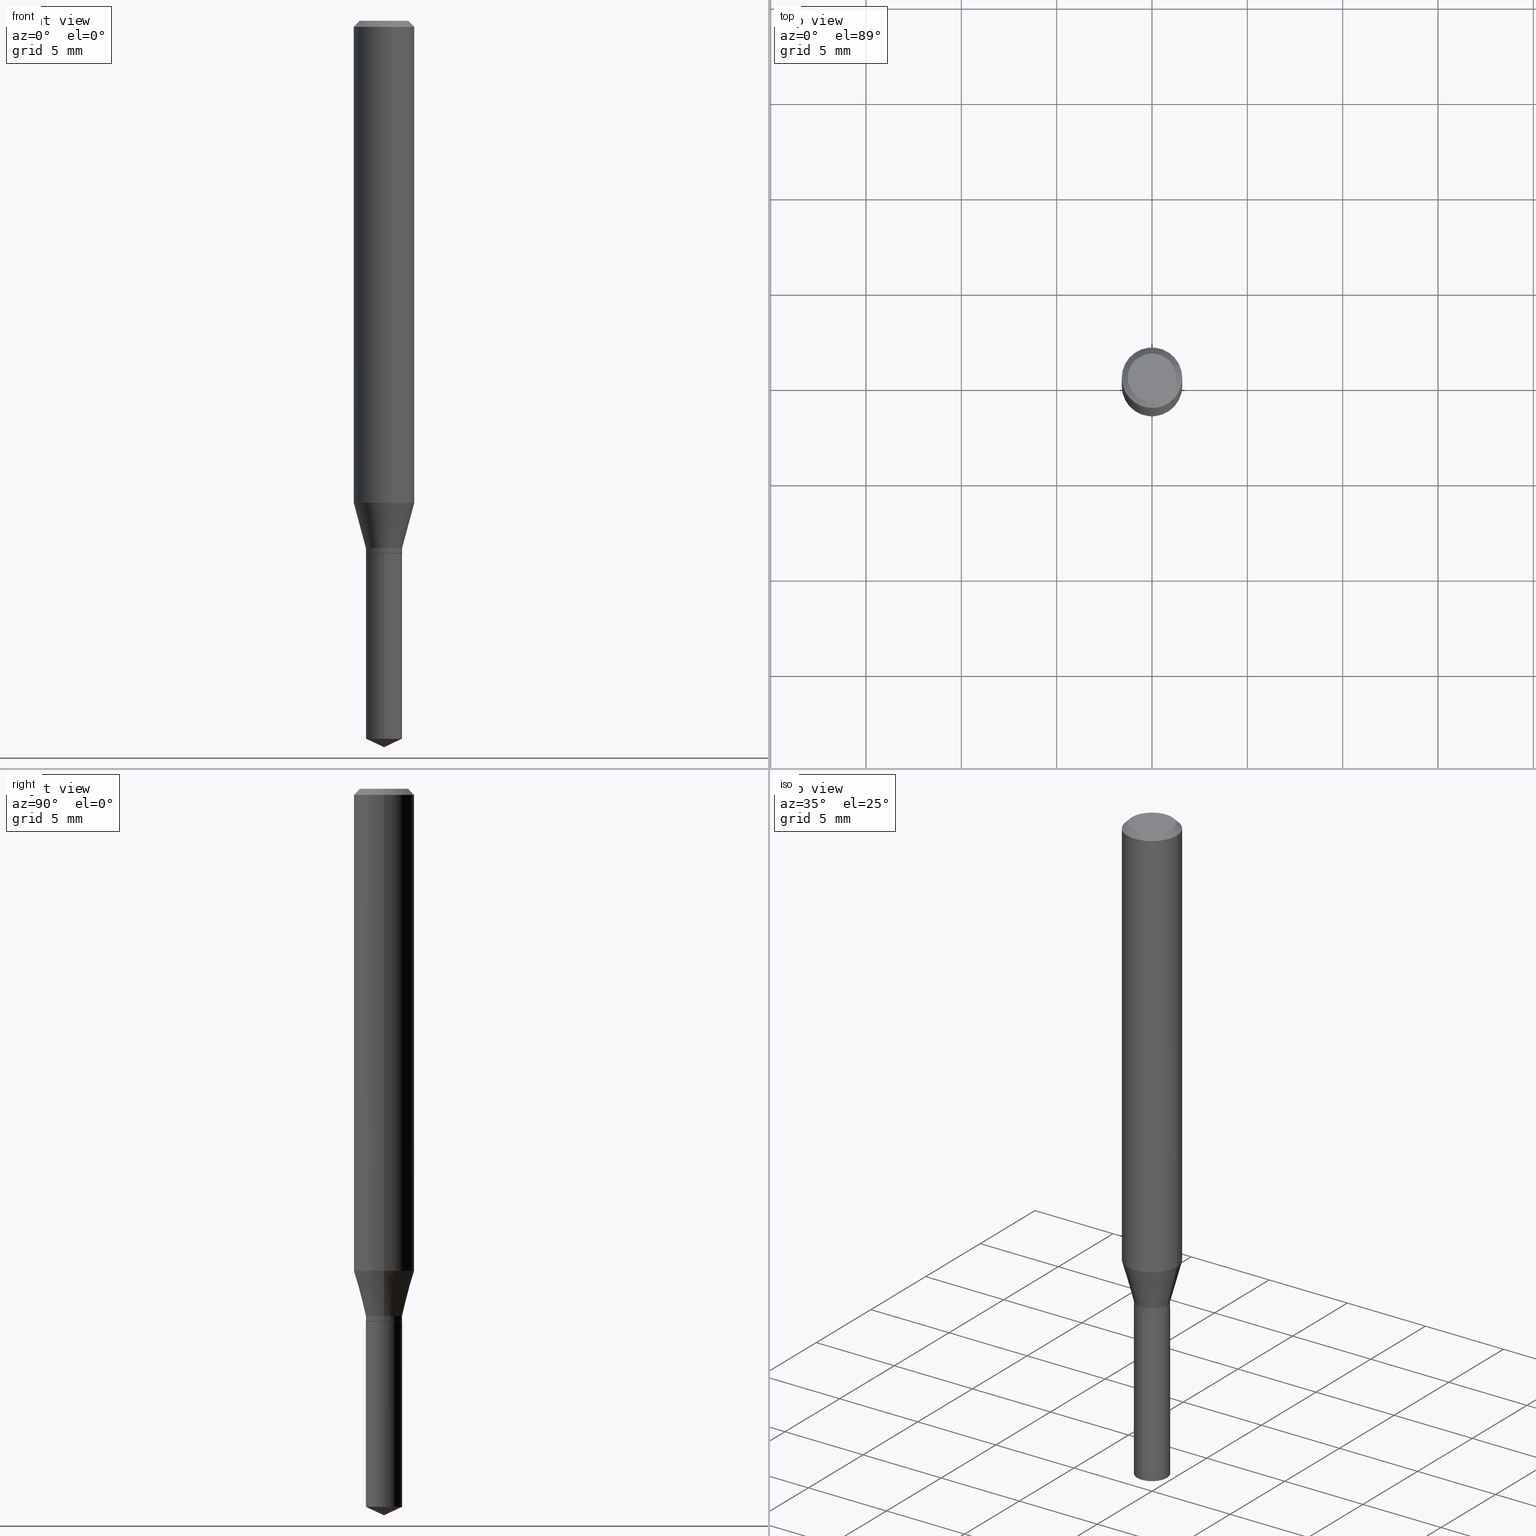
[diagram: canonical four-view strip — front | top / right | iso, engineering-drawing reading convention]
A machine part, canonical four-view strip (front | top / right | iso — engineering-drawing reading convention). The complete STEP part file that produces these views, byte-faithful:
ISO-10303-21;
HEADER;
FILE_DESCRIPTION (( 'STEP AP203' ),
    '1' );
FILE_NAME ('07352.STEP',
    '2024-04-23T20:39:58',
    ( '' ),
    ( '' ),
    'SwSTEP 2.0',
    'SolidWorks 2023',
    '' );
FILE_SCHEMA (( 'CONFIG_CONTROL_DESIGN' ));
ENDSEC;

DATA;
#1 = ORIENTED_EDGE ( 'NONE', *, *, #389, .F. ) ;
#2 = VECTOR ( 'NONE', #466, 39.37007874015748143 ) ;
#3 = FACE_OUTER_BOUND ( 'NONE', #422, .T. ) ;
#4 = ORIENTED_EDGE ( 'NONE', *, *, #47, .F. ) ;
#5 = EDGE_CURVE ( 'NONE', #321, #427, #157, .T. ) ;
#6 = ORIENTED_EDGE ( 'NONE', *, *, #439, .T. ) ;
#7 = VERTEX_POINT ( 'NONE', #357 ) ;
#8 = APPROVAL_PERSON_ORGANIZATION ( #67, #313, #29 ) ;
#9 = ORIENTED_EDGE ( 'NONE', *, *, #163, .T. ) ;
#10 = FACE_OUTER_BOUND ( 'NONE', #50, .T. ) ;
#11 = CARTESIAN_POINT ( 'NONE',  ( 0.03740000000000000269, -4.062687685877884033E-15, -1.088800000000000212 ) ) ;
#12 = DIRECTION ( 'NONE',  ( -6.982962677686265922E-15, -1.000000000000000000, 3.652203200085913145E-15 ) ) ;
#13 = CARTESIAN_POINT ( 'NONE',  ( -2.611628041454394310E-16, -0.03740000000000384683, -1.099999999999999867 ) ) ;
#14 = CARTESIAN_POINT ( 'NONE',  ( 0.000000000000000000, 0.000000000000000000, 0.000000000000000000 ) ) ;
#15 = AXIS2_PLACEMENT_3D ( 'NONE', #473, #31, #298 ) ;
#16 = AXIS2_PLACEMENT_3D ( 'NONE', #14, #353, #118 ) ;
#17 = DIRECTION ( 'NONE',  ( -6.328713451373374901E-15, -0.9063077870366492705, 0.4226182617407009956 ) ) ;
#18 = ADVANCED_FACE ( 'NONE', ( #256 ), #304, .T. ) ;
#19 = VERTEX_POINT ( 'NONE', #21 ) ;
#20 = EDGE_LOOP ( 'NONE', ( #197, #281, #452, #318 ) ) ;
#21 = CARTESIAN_POINT ( 'NONE',  ( 3.668099535622682715E-29, -5.237370474839449507E-15, -1.500000000000000222 ) ) ;
#22 = DIRECTION ( 'NONE',  ( -2.445468806185136597E-29, 3.491481338843145583E-15, 1.000000000000000000 ) ) ;
#23 = VECTOR ( 'NONE', #59, 39.37007874015747433 ) ;
#24 = ADVANCED_FACE ( 'NONE', ( #10 ), #339, .T. ) ;
#25 = LINE ( 'NONE', #398, #23 ) ;
#26 = AXIS2_PLACEMENT_3D ( 'NONE', #371, #95, #400 ) ;
#27 = CIRCLE ( 'NONE', #471, 0.03740000000000000269 ) ;
#28 = LOCAL_TIME ( 16, 39, 58.00000000000000000, #375 ) ;
#29 = APPROVAL_ROLE ( '' ) ;
#30 = DIRECTION ( 'NONE',  ( -2.445468806185136597E-29, 3.491481338843145583E-15, 1.000000000000000000 ) ) ;
#31 = DIRECTION ( 'NONE',  ( 2.445468806185136597E-29, -3.491481338843145583E-15, -1.000000000000000000 ) ) ;
#32 = CALENDAR_DATE ( 2024, 23, 4 ) ;
#33 = DIRECTION ( 'NONE',  ( 1.000000000000000000, -6.982962677686261189E-15, 0.000000000000000000 ) ) ;
#34 = ORIENTED_EDGE ( 'NONE', *, *, #246, .T. ) ;
#35 = EDGE_CURVE ( 'NONE', #427, #44, #368, .T. ) ;
#36 = EDGE_CURVE ( 'NONE', #149, #122, #251, .T. ) ;
#37 = ORIENTED_EDGE ( 'NONE', *, *, #5, .F. ) ;
#38 = LINE ( 'NONE', #86, #2 ) ;
#39 = VERTEX_POINT ( 'NONE', #167 ) ;
#40 = ADVANCED_FACE ( 'NONE', ( #331 ), #477, .F. ) ;
#41 = DIRECTION ( 'NONE',  ( -2.445468806185136597E-29, 3.491481338843145583E-15, 1.000000000000000000 ) ) ;
#42 = EDGE_LOOP ( 'NONE', ( #390, #73, #384, #1 ) ) ;
#43 = PRODUCT_DEFINITION_SHAPE ( 'NONE', 'NONE',  #241 ) ;
#44 = VERTEX_POINT ( 'NONE', #359 ) ;
#45 = VECTOR ( 'NONE', #188, 39.37007874015748143 ) ;
#46 = AXIS2_PLACEMENT_3D ( 'NONE', #385, #274, #416 ) ;
#47 = EDGE_CURVE ( 'NONE', #440, #191, #363, .T. ) ;
#48 = CARTESIAN_POINT ( 'NONE',  ( 2.690015686803650369E-29, -3.840629472727460101E-15, -1.100000000000000089 ) ) ;
#49 = DIRECTION ( 'NONE',  ( 2.438088387897960049E-29, -3.491481338843145188E-15, -1.000000000000000000 ) ) ;
#50 = EDGE_LOOP ( 'NONE', ( #4, #279, #153, #218 ) ) ;
#51 = DIRECTION ( 'NONE',  ( 0.2588190451025213501, 1.565188264969621968E-15, 0.9659258262890682012 ) ) ;
#52 = DIRECTION ( 'NONE',  ( -6.982962677686265922E-15, -1.000000000000000000, 3.652203200085913145E-15 ) ) ;
#53 = EDGE_LOOP ( 'NONE', ( #367, #352, #284 ) ) ;
#54 = CC_DESIGN_PERSON_AND_ORGANIZATION_ASSIGNMENT ( #340, #233, ( #420 ) ) ;
#55 = DIRECTION ( 'NONE',  ( -6.982962677686266711E-15, -1.000000000000000000, 3.520397390770453475E-15 ) ) ;
#56 = AXIS2_PLACEMENT_3D ( 'NONE', #48, #387, #12 ) ;
#57 = CARTESIAN_POINT ( 'NONE',  ( 2.433548428965882427E-29, -3.474462199401361914E-15, -0.9951255247300211382 ) ) ;
#58 = CARTESIAN_POINT ( 'NONE',  ( 2.690015686803650369E-29, -3.840629472727460101E-15, -1.100000000000000089 ) ) ;
#59 = DIRECTION ( 'NONE',  ( -0.2588190451025213501, 5.211531920934551042E-15, 0.9659258262890682012 ) ) ;
#60 = CARTESIAN_POINT ( 'NONE',  ( 0.04999999999999999584, -4.077247707424184212E-16, -1.592040838888913461E-18 ) ) ;
#61 = CARTESIAN_POINT ( 'NONE',  ( -9.260740279983036507E-28, 1.322265303911854087E-13, 37.87007874015748143 ) ) ;
#62 = DATE_TIME_ROLE ( 'classification_date' ) ;
#63 = CARTESIAN_POINT ( 'NONE',  ( -2.611628041454394310E-16, -0.03740000000000384683, -1.099999999999999867 ) ) ;
#64 = ADVANCED_FACE ( 'NONE', ( #291 ), #180, .T. ) ;
#65 = APPROVAL_STATUS ( 'not_yet_approved' ) ;
#66 = CARTESIAN_POINT ( 'NONE',  ( 0.03740000000000000269, -2.611628041454664002E-16, 1.823690114147680082E-30 ) ) ;
#67 = PERSON_AND_ORGANIZATION ( #135, #92 ) ;
#68 = DIRECTION ( 'NONE',  ( -2.445468806185136877E-29, 3.491481338843145188E-15, 1.000000000000000000 ) ) ;
#69 = AXIS2_PLACEMENT_3D ( 'NONE', #155, #316, #460 ) ;
#70 = CC_DESIGN_APPROVAL ( #313, ( #420 ) ) ;
#71 = PERSON_AND_ORGANIZATION ( #135, #92 ) ;
#72 = ORIENTED_EDGE ( 'NONE', *, *, #411, .T. ) ;
#73 = ORIENTED_EDGE ( 'NONE', *, *, #436, .T. ) ;
#74 = LINE ( 'NONE', #182, #445 ) ;
#75 = CC_DESIGN_DATE_AND_TIME_ASSIGNMENT ( #271, #405, ( #241 ) ) ;
#76 =( CONVERSION_BASED_UNIT ( 'INCH', #348 ) LENGTH_UNIT ( ) NAMED_UNIT ( #211 ) );
#77 = EDGE_LOOP ( 'NONE', ( #72, #324, #219, #297 ) ) ;
#78 = AXIS2_PLACEMENT_3D ( 'NONE', #482, #96, #148 ) ;
#79 = ORIENTED_EDGE ( 'NONE', *, *, #399, .F. ) ;
#80 = ORIENTED_EDGE ( 'NONE', *, *, #246, .F. ) ;
#81 = ADVANCED_FACE ( 'NONE', ( #402 ), #459, .T. ) ;
#82 = LINE ( 'NONE', #209, #365 ) ;
#83 = ORIENTED_EDGE ( 'NONE', *, *, #312, .T. ) ;
#84 = EDGE_LOOP ( 'NONE', ( #383, #455, #397, #193 ) ) ;
#85 = DIRECTION ( 'NONE',  ( -2.438088387897960049E-29, 3.491481338843145188E-15, 1.000000000000000000 ) ) ;
#86 = CARTESIAN_POINT ( 'NONE',  ( 0.06250000000000000000, -4.724246415962602840E-16, -0.01250000000000008223 ) ) ;
#87 = AXIS2_PLACEMENT_3D ( 'NONE', #345, #273, #344 ) ;
#88 = AXIS2_PLACEMENT_3D ( 'NONE', #58, #133, #468 ) ;
#89 = LINE ( 'NONE', #294, #249 ) ;
#90 = ADVANCED_FACE ( 'NONE', ( #302 ), #489, .T. ) ;
#91 = ORIENTED_EDGE ( 'NONE', *, *, #47, .T. ) ;
#92 = ORGANIZATION ( 'UNSPECIFIED', 'UNSPECIFIED', '' ) ;
#93 = ORIENTED_EDGE ( 'NONE', *, *, #480, .T. ) ;
#94 = DIRECTION ( 'NONE',  ( -2.445399690415121530E-29, 3.491580316559632610E-15, 1.000000000000000000 ) ) ;
#95 = DIRECTION ( 'NONE',  ( -2.445468806185136597E-29, 3.491481338843145583E-15, 1.000000000000000000 ) ) ;
#96 = DIRECTION ( 'NONE',  ( 0.000000000000000000, 0.000000000000000000, 1.000000000000000000 ) ) ;
#97 = EDGE_CURVE ( 'NONE', #146, #160, #311, .T. ) ;
#98 = CIRCLE ( 'NONE', #341, 0.03740000000000000269 ) ;
#99 = ADVANCED_FACE ( 'NONE', ( #152 ), #454, .F. ) ;
#100 = CALENDAR_DATE ( 2024, 23, 4 ) ;
#101 =( NAMED_UNIT ( * ) SI_UNIT ( $, .STERADIAN. ) SOLID_ANGLE_UNIT ( ) );
#102 = PERSON_AND_ORGANIZATION_ROLE ( 'classification_officer' ) ;
#103 = VECTOR ( 'NONE', #128, 39.37007874015748143 ) ;
#104 = AXIS2_PLACEMENT_3D ( 'NONE', #196, #263, #270 ) ;
#105 = DATE_AND_TIME ( #32, #28 ) ;
#106 = EDGE_CURVE ( 'NONE', #292, #131, #415, .T. ) ;
#107 = CARTESIAN_POINT ( 'NONE',  ( 2.690015686803650369E-29, -3.840629472727460101E-15, -1.100000000000000089 ) ) ;
#108 = EDGE_LOOP ( 'NONE', ( #6, #210, #114, #162 ) ) ;
#109 = VERTEX_POINT ( 'NONE', #185 ) ;
#110 =( NAMED_UNIT ( * ) PLANE_ANGLE_UNIT ( ) SI_UNIT ( $, .RADIAN. ) );
#111 = EDGE_LOOP ( 'NONE', ( #79, #119, #464, #257 ) ) ;
#112 = FACE_OUTER_BOUND ( 'NONE', #332, .T. ) ;
#113 = CIRCLE ( 'NONE', #470, 0.06250000000000000000 ) ;
#114 = ORIENTED_EDGE ( 'NONE', *, *, #411, .F. ) ;
#115 = CIRCLE ( 'NONE', #214, 0.03690000000000000224 ) ;
#116 = CARTESIAN_POINT ( 'NONE',  ( -2.611628041454301126E-16, -0.03740000000000517216, -1.482560093585003180 ) ) ;
#117 = DIRECTION ( 'NONE',  ( -2.445468806185136877E-29, 3.491481338843145188E-15, 1.000000000000000000 ) ) ;
#118 = DIRECTION ( 'NONE',  ( 1.000000000000000000, -6.982962677686267499E-15, 4.876176775795936353E-29 ) ) ;
#119 = ORIENTED_EDGE ( 'NONE', *, *, #5, .T. ) ;
#120 = EDGE_CURVE ( 'NONE', #19, #292, #451, .T. ) ;
#121 = DIRECTION ( 'NONE',  ( 0.7071067811865232589, -2.468850131082003836E-15, 0.7071067811865715536 ) ) ;
#122 = VERTEX_POINT ( 'NONE', #63 ) ;
#123 = DIRECTION ( 'NONE',  ( -2.445399690415121810E-29, 3.491580316559632610E-15, 1.000000000000000000 ) ) ;
#124 = AXIS2_PLACEMENT_3D ( 'NONE', #388, #41, #139 ) ;
#125 = EDGE_CURVE ( 'NONE', #44, #198, #113, .T. ) ;
#126 = ADVANCED_FACE ( 'NONE', ( #306 ), #490, .T. ) ;
#127 = ORIENTED_EDGE ( 'NONE', *, *, #443, .T. ) ;
#128 = DIRECTION ( 'NONE',  ( -2.445468806185136877E-29, 3.491481338843145188E-15, 1.000000000000000000 ) ) ;
#129 = VERTEX_POINT ( 'NONE', #392 ) ;
#130 = DIRECTION ( 'NONE',  ( 1.000000000000000000, -6.982962677686264344E-15, 0.000000000000000000 ) ) ;
#131 = VERTEX_POINT ( 'NONE', #205 ) ;
#132 = EDGE_CURVE ( 'NONE', #146, #39, #221, .T. ) ;
#133 = DIRECTION ( 'NONE',  ( -2.445468806185136597E-29, 3.491481338843145583E-15, 1.000000000000000000 ) ) ;
#134 = AXIS2_PLACEMENT_3D ( 'NONE', #309, #450, #33 ) ;
#135 = PERSON ( 'UNSPECIFIED', 'UNSPECIFIED', 'UNSPECIFIED', ('UNSPECIFIED'), ('UNSPECIFIED'), ('UNSPECIFIED') ) ;
#136 = MANIFOLD_SOLID_BREP ( 'Body-Move/Copy2[1]', #248 ) ;
#137 = DATE_AND_TIME ( #410, #143 ) ;
#138 = APPLICATION_PROTOCOL_DEFINITION ( 'international standard', 'config_control_design', 1994, #479 ) ;
#139 = DIRECTION ( 'NONE',  ( 1.000000000000000000, -6.982962677686266711E-15, 4.876176775795935793E-29 ) ) ;
#140 = AXIS2_PLACEMENT_3D ( 'NONE', #61, #222, #374 ) ;
#141 = DIRECTION ( 'NONE',  ( 1.000000000000000000, -6.982962677686266711E-15, 0.000000000000000000 ) ) ;
#142 = LINE ( 'NONE', #441, #373 ) ;
#143 = LOCAL_TIME ( 16, 39, 58.00000000000000000, #226 ) ;
#144 = FACE_OUTER_BOUND ( 'NONE', #42, .T. ) ;
#145 = CARTESIAN_POINT ( 'NONE',  ( 0.000000000000000000, 0.000000000000000000, 0.000000000000000000 ) ) ;
#146 = VERTEX_POINT ( 'NONE', #457 ) ;
#147 = ADVANCED_FACE ( 'NONE', ( #3 ), #282, .F. ) ;
#148 = DIRECTION ( 'NONE',  ( 1.000000000000000000, 0.000000000000000000, 0.000000000000000000 ) ) ;
#149 = VERTEX_POINT ( 'NONE', #116 ) ;
#150 = AXIS2_PLACEMENT_3D ( 'NONE', #322, #159, #293 ) ;
#151 = CIRCLE ( 'NONE', #432, 0.03740000000000000269 ) ;
#152 = FACE_OUTER_BOUND ( 'NONE', #354, .T. ) ;
#153 = ORIENTED_EDGE ( 'NONE', *, *, #125, .T. ) ;
#154 = EDGE_CURVE ( 'NONE', #122, #131, #437, .T. ) ;
#155 = CARTESIAN_POINT ( 'NONE',  ( 2.690015686803650369E-29, -3.840629472727460101E-15, -1.100000000000000089 ) ) ;
#156 = ADVANCED_FACE ( 'NONE', ( #195 ), #372, .T. ) ;
#157 = CIRCLE ( 'NONE', #326, 0.06250000000000012490 ) ;
#158 = AXIS2_PLACEMENT_3D ( 'NONE', #366, #362, #55 ) ;
#159 = DIRECTION ( 'NONE',  ( -2.445468806185136597E-29, 3.491481338843145583E-15, 1.000000000000000000 ) ) ;
#160 = VERTEX_POINT ( 'NONE', #11 ) ;
#161 = DIRECTION ( 'NONE',  ( -2.445468806185136597E-29, 3.491481338843145583E-15, 1.000000000000000000 ) ) ;
#162 = ORIENTED_EDGE ( 'NONE', *, *, #237, .F. ) ;
#163 = EDGE_CURVE ( 'NONE', #19, #149, #434, .T. ) ;
#164 = FACE_OUTER_BOUND ( 'NONE', #53, .T. ) ;
#165 = CARTESIAN_POINT ( 'NONE',  ( 3.893286209682126177E-47, -5.558580879666067980E-33, -1.592040838891559689E-18 ) ) ;
#166 = CONICAL_SURFACE ( 'NONE', #46, 0.06250000000000000000, 0.7853981633974452814 ) ;
#167 = CARTESIAN_POINT ( 'NONE',  ( -0.03740000000000000269, -3.554461323720950725E-15, -1.099499999999999922 ) ) ;
#168 = VECTOR ( 'NONE', #17, 39.37007874015748143 ) ;
#169 = VECTOR ( 'NONE', #117, 39.37007874015748143 ) ;
#170 = ORIENTED_EDGE ( 'NONE', *, *, #217, .F. ) ;
#171 = DIRECTION ( 'NONE',  ( 1.000000000000000000, -6.982962677686266711E-15, 0.000000000000000000 ) ) ;
#172 = DIRECTION ( 'NONE',  ( 1.000000000000000000, -6.982962677686261189E-15, 0.000000000000000000 ) ) ;
#173 = APPLICATION_PROTOCOL_DEFINITION ( 'international standard', 'config_control_design', 1994, #295 ) ;
#174 = PERSON_AND_ORGANIZATION_ROLE ( 'design_owner' ) ;
#175 = CARTESIAN_POINT ( 'NONE',  ( 3.668252923656895710E-29, -5.237152723863177100E-15, -1.500000000000000222 ) ) ;
#176 = DIRECTION ( 'NONE',  ( -2.445399690415121530E-29, 3.491580316559632610E-15, 1.000000000000000000 ) ) ;
#177 = UNCERTAINTY_MEASURE_WITH_UNIT (LENGTH_MEASURE( 1.000000000000000082E-05 ), #76, 'distance_accuracy_value', 'NONE');
#178 = COORDINATED_UNIVERSAL_TIME_OFFSET ( 5, 0, .BEHIND. ) ;
#179 = CARTESIAN_POINT ( 'NONE',  ( 0.000000000000000000, 0.000000000000000000, 0.000000000000000000 ) ) ;
#180 = CONICAL_SURFACE ( 'NONE', #265, 0.03740000000000000269, 0.2617993877991500740 ) ;
#181 = CIRCLE ( 'NONE', #255, 0.06250000000000012490 ) ;
#182 = CARTESIAN_POINT ( 'NONE',  ( -0.03690000000000000224, -3.578439203231982821E-15, -1.100000000000000089 ) ) ;
#183 = DIRECTION ( 'NONE',  ( 1.000000000000000000, -6.982962677686261977E-15, 0.000000000000000000 ) ) ;
#184 = MECHANICAL_CONTEXT ( 'NONE', #479, 'mechanical' ) ;
#185 = CARTESIAN_POINT ( 'NONE',  ( -0.03740000000000000269, -3.554461323720950725E-15, -1.088800000000000212 ) ) ;
#186 = APPROVAL_DATE_TIME ( #105, #423 ) ;
#187 = ORIENTED_EDGE ( 'NONE', *, *, #253, .T. ) ;
#188 = DIRECTION ( 'NONE',  ( -2.445399690415121810E-29, 3.491580316559632610E-15, 1.000000000000000000 ) ) ;
#189 = EDGE_LOOP ( 'NONE', ( #413, #187, #358, #349 ) ) ;
#190 =( LENGTH_UNIT ( ) NAMED_UNIT ( * ) SI_UNIT ( $, .METRE. ) );
#191 = VERTEX_POINT ( 'NONE', #330 ) ;
#192 = CARTESIAN_POINT ( 'NONE',  ( 2.657429831743136776E-16, 0.03739999999999481933, -1.482560093585003180 ) ) ;
#193 = ORIENTED_EDGE ( 'NONE', *, *, #480, .F. ) ;
#194 = FACE_OUTER_BOUND ( 'NONE', #77, .T. ) ;
#195 = FACE_OUTER_BOUND ( 'NONE', #189, .T. ) ;
#196 = CARTESIAN_POINT ( 'NONE',  ( 3.893286209682126177E-47, -5.558580879666067980E-33, -1.592040838891559689E-18 ) ) ;
#197 = ORIENTED_EDGE ( 'NONE', *, *, #261, .T. ) ;
#198 = VERTEX_POINT ( 'NONE', #259 ) ;
#199 = AXIS2_PLACEMENT_3D ( 'NONE', #165, #325, #469 ) ;
#200 = DIRECTION ( 'NONE',  ( -2.445468806185136597E-29, 3.491481338843145583E-15, 1.000000000000000000 ) ) ;
#201 = SECURITY_CLASSIFICATION ( '', '', #442 ) ;
#202 = CARTESIAN_POINT ( 'NONE',  ( 2.688792952400557567E-29, -3.838883732058038598E-15, -1.099499999999999922 ) ) ;
#203 = LINE ( 'NONE', #287, #333 ) ;
#204 = ADVANCED_FACE ( 'NONE', ( #112 ), #166, .T. ) ;
#205 = CARTESIAN_POINT ( 'NONE',  ( 2.657429831743138255E-16, 0.03739999999999616548, -1.100000000000000089 ) ) ;
#206 = DIRECTION ( 'NONE',  ( -1.000000000000000000, 6.982962677686265922E-15, -4.876176775795935793E-29 ) ) ;
#207 = ORIENTED_EDGE ( 'NONE', *, *, #36, .T. ) ;
#208 = ORIENTED_EDGE ( 'NONE', *, *, #97, .F. ) ;
#209 = CARTESIAN_POINT ( 'NONE',  ( -0.06250000000000005551, 4.440892098500630106E-16, -3.074334431409318916E-30 ) ) ;
#210 = ORIENTED_EDGE ( 'NONE', *, *, #262, .T. ) ;
#211 = DIMENSIONAL_EXPONENTS ( 1.000000000000000000, 0.000000000000000000, 0.000000000000000000, 0.000000000000000000, 0.000000000000000000, 0.000000000000000000, 0.000000000000000000 ) ;
#212 = PRODUCT ( '07352', '07352', '', ( #184 ) ) ;
#213 = AXIS2_PLACEMENT_3D ( 'NONE', #107, #308, #231 ) ;
#214 = AXIS2_PLACEMENT_3D ( 'NONE', #225, #403, #172 ) ;
#215 = CARTESIAN_POINT ( 'NONE',  ( 3.668099535622682155E-29, -5.237370474839448718E-15, -1.500000000000000222 ) ) ;
#216 = CIRCLE ( 'NONE', #104, 0.04999999999999999584 ) ;
#217 = EDGE_CURVE ( 'NONE', #440, #44, #38, .T. ) ;
#218 = ORIENTED_EDGE ( 'NONE', *, *, #444, .F. ) ;
#219 = ORIENTED_EDGE ( 'NONE', *, *, #125, .F. ) ;
#220 = CARTESIAN_POINT ( 'NONE',  ( 3.056836007731440977E-31, -4.364351673553961068E-17, -0.01250000000000008223 ) ) ;
#221 = CIRCLE ( 'NONE', #254, 0.03740000000000000269 ) ;
#222 = DIRECTION ( 'NONE',  ( -2.445399690415121530E-29, 3.491580316559632610E-15, 1.000000000000000000 ) ) ;
#223 = CIRCLE ( 'NONE', #88, 0.03690000000000000224 ) ;
#224 = APPROVAL_STATUS ( 'not_yet_approved' ) ;
#225 = CARTESIAN_POINT ( 'NONE',  ( 2.690015686803650369E-29, -3.840629472727460101E-15, -1.100000000000000089 ) ) ;
#226 = COORDINATED_UNIVERSAL_TIME_OFFSET ( 5, 0, .BEHIND. ) ;
#227 = PERSON_AND_ORGANIZATION ( #135, #92 ) ;
#228 = ADVANCED_FACE ( 'NONE', ( #194 ), #247, .T. ) ;
#229 = DIRECTION ( 'NONE',  ( -2.445468806185136597E-29, 3.491481338843145583E-15, 1.000000000000000000 ) ) ;
#230 = LOCAL_TIME ( 16, 39, 58.00000000000000000, #448 ) ;
#231 = DIRECTION ( 'NONE',  ( 6.982962677686265922E-15, 1.000000000000000000, -3.491580316559632610E-15 ) ) ;
#232 = CARTESIAN_POINT ( 'NONE',  ( 2.662626436174376772E-29, -3.801524881732417633E-15, -1.088800000000000212 ) ) ;
#233 = PERSON_AND_ORGANIZATION_ROLE ( 'creator' ) ;
#234 = ORIENTED_EDGE ( 'NONE', *, *, #430, .F. ) ;
#235 = APPROVAL_STATUS ( 'not_yet_approved' ) ;
#236 = ORIENTED_EDGE ( 'NONE', *, *, #262, .F. ) ;
#237 = EDGE_CURVE ( 'NONE', #160, #427, #203, .T. ) ;
#238 = CLOSED_SHELL ( 'NONE', ( #288, #24, #228, #64, #418, #126, #18, #269, #204, #40, #147, #156 ) ) ;
#239 = AXIS2_PLACEMENT_3D ( 'NONE', #268, #229, #183 ) ;
#240 = ORIENTED_EDGE ( 'NONE', *, *, #312, .F. ) ;
#241 = PRODUCT_DEFINITION ( 'UNKNOWN', '', #420, #485 ) ;
#242 = CARTESIAN_POINT ( 'NONE',  ( 2.688792952400557567E-29, -3.838883732058038598E-15, -1.099499999999999922 ) ) ;
#243 = CYLINDRICAL_SURFACE ( 'NONE', #56, 0.03740000000000000269 ) ;
#244 = CYLINDRICAL_SURFACE ( 'NONE', #124, 0.03740000000000000269 ) ;
#245 = EDGE_CURVE ( 'NONE', #39, #146, #98, .T. ) ;
#246 = EDGE_CURVE ( 'NONE', #191, #440, #216, .T. ) ;
#247 = CYLINDRICAL_SURFACE ( 'NONE', #16, 0.06250000000000005551 ) ;
#248 = CLOSED_SHELL ( 'NONE', ( #90, #369, #81, #360, #99 ) ) ;
#249 = VECTOR ( 'NONE', #121, 39.37007874015748854 ) ;
#250 = DIRECTION ( 'NONE',  ( -2.445399690415121530E-29, 3.491580316559632610E-15, 1.000000000000000000 ) ) ;
#251 = LINE ( 'NONE', #13, #409 ) ;
#252 = ORIENTED_EDGE ( 'NONE', *, *, #253, .F. ) ;
#253 = EDGE_CURVE ( 'NONE', #129, #7, #115, .T. ) ;
#254 = AXIS2_PLACEMENT_3D ( 'NONE', #202, #161, #386 ) ;
#255 = AXIS2_PLACEMENT_3D ( 'NONE', #329, #474, #130 ) ;
#256 = FACE_OUTER_BOUND ( 'NONE', #417, .T. ) ;
#257 = ORIENTED_EDGE ( 'NONE', *, *, #443, .F. ) ;
#258 = DIRECTION ( 'NONE',  ( -6.982962677686265922E-15, -1.000000000000000000, 0.000000000000000000 ) ) ;
#259 = CARTESIAN_POINT ( 'NONE',  ( -0.06250000000000000000, -1.314963648218386938E-15, -0.01250000000000008223 ) ) ;
#260 = DIRECTION ( 'NONE',  ( 1.000000000000000000, -6.982962677686264344E-15, 0.000000000000000000 ) ) ;
#261 = EDGE_CURVE ( 'NONE', #149, #292, #290, .T. ) ;
#262 = EDGE_CURVE ( 'NONE', #109, #321, #25, .T. ) ;
#263 = DIRECTION ( 'NONE',  ( -2.445468806185136597E-29, 3.491481338843145583E-15, 1.000000000000000000 ) ) ;
#264 = PERSON_AND_ORGANIZATION ( #135, #92 ) ;
#265 = AXIS2_PLACEMENT_3D ( 'NONE', #433, #334, #272 ) ;
#266 = CIRCLE ( 'NONE', #239, 0.03740000000000000269 ) ;
#267 = CARTESIAN_POINT ( 'NONE',  ( 3.625528021221597091E-29, -5.176368765390068411E-15, -1.482560093585003180 ) ) ;
#268 = CARTESIAN_POINT ( 'NONE',  ( 2.662626436174376772E-29, -3.801524881732417633E-15, -1.088800000000000212 ) ) ;
#269 = ADVANCED_FACE ( 'NONE', ( #370 ), #381, .T. ) ;
#270 = DIRECTION ( 'NONE',  ( 1.000000000000000000, -6.982962677686265922E-15, 4.875957971899673662E-29 ) ) ;
#271 = DATE_AND_TIME ( #100, #230 ) ;
#272 = DIRECTION ( 'NONE',  ( 1.000000000000000000, -6.982962677686261977E-15, 0.000000000000000000 ) ) ;
#273 = DIRECTION ( 'NONE',  ( -2.445399690415121530E-29, 3.491580316559632610E-15, 1.000000000000000000 ) ) ;
#274 = DIRECTION ( 'NONE',  ( 2.445468806185136597E-29, -3.491481338843145583E-15, -1.000000000000000000 ) ) ;
#275 = APPROVAL_DATE_TIME ( #137, #406 ) ;
#276 = CC_DESIGN_PERSON_AND_ORGANIZATION_ASSIGNMENT ( #71, #449, ( #241 ) ) ;
#277 = AXIS2_PLACEMENT_3D ( 'NONE', #145, #412, #351 ) ;
#278 = APPROVAL_PERSON_ORGANIZATION ( #264, #423, #414 ) ;
#279 = ORIENTED_EDGE ( 'NONE', *, *, #217, .T. ) ;
#280 = DIRECTION ( 'NONE',  ( 6.439704144417030353E-15, 0.9063077870366521571, 0.4226182617406946673 ) ) ;
#281 = ORIENTED_EDGE ( 'NONE', *, *, #106, .T. ) ;
#282 = PLANE ( 'NONE',  #283 ) ;
#283 = AXIS2_PLACEMENT_3D ( 'NONE', #429, #85, #391 ) ;
#284 = ORIENTED_EDGE ( 'NONE', *, *, #261, .F. ) ;
#285 = AXIS2_PLACEMENT_3D ( 'NONE', #179, #30, #342 ) ;
#286 = EDGE_LOOP ( 'NONE', ( #395, #9, #467 ) ) ;
#287 = CARTESIAN_POINT ( 'NONE',  ( 0.03740000000000000269, -4.062687685877884033E-15, -1.088800000000000212 ) ) ;
#288 = ADVANCED_FACE ( 'NONE', ( #144 ), #310, .T. ) ;
#289 = CARTESIAN_POINT ( 'NONE',  ( 1.946643104841063088E-47, -2.779290439833033990E-33, -7.960204194457798443E-19 ) ) ;
#290 = CIRCLE ( 'NONE', #404, 0.03740000000000000269 ) ;
#291 = FACE_OUTER_BOUND ( 'NONE', #108, .T. ) ;
#292 = VERTEX_POINT ( 'NONE', #192 ) ;
#293 = DIRECTION ( 'NONE',  ( 1.000000000000000000, -6.982962677686261189E-15, 0.000000000000000000 ) ) ;
#294 = CARTESIAN_POINT ( 'NONE',  ( 0.03690000000000000224, -4.098300795534083495E-15, -1.100000000000000089 ) ) ;
#295 = APPLICATION_CONTEXT ( 'configuration controlled 3d designs of mechanical parts and assemblies' ) ;
#296 = LOCAL_TIME ( 16, 39, 58.00000000000000000, #337 ) ;
#297 = ORIENTED_EDGE ( 'NONE', *, *, #35, .F. ) ;
#298 = DIRECTION ( 'NONE',  ( -1.000000000000000000, 6.982962677686266711E-15, 0.000000000000000000 ) ) ;
#299 = DIRECTION ( 'NONE',  ( -0.7071067811865232589, 7.493145998870265808E-15, 0.7071067811865715536 ) ) ;
#300 = ADVANCED_BREP_SHAPE_REPRESENTATION ( '07352', ( #136, #320, #78 ), #319 ) ;
#301 = PERSON_AND_ORGANIZATION_ROLE ( 'design_supplier' ) ;
#302 = FACE_OUTER_BOUND ( 'NONE', #20, .T. ) ;
#303 = DATE_AND_TIME ( #380, #296 ) ;
#304 = CONICAL_SURFACE ( 'NONE', #26, 0.03740000000000000269, 0.2617993877991500740 ) ;
#305 = AXIS2_PLACEMENT_3D ( 'NONE', #220, #22, #171 ) ;
#306 = FACE_OUTER_BOUND ( 'NONE', #84, .T. ) ;
#307 = PERSON_AND_ORGANIZATION ( #135, #92 ) ;
#308 = DIRECTION ( 'NONE',  ( 2.445399690415121250E-29, -3.491580316559632610E-15, -1.000000000000000000 ) ) ;
#309 = CARTESIAN_POINT ( 'NONE',  ( 2.690015686803650369E-29, -3.840629472727460101E-15, -1.100000000000000089 ) ) ;
#310 = CONICAL_SURFACE ( 'NONE', #134, 0.03690000000000000224, 0.7853981633974141952 ) ;
#311 = LINE ( 'NONE', #66, #419 ) ;
#312 = EDGE_CURVE ( 'NONE', #131, #122, #486, .T. ) ;
#313 = APPROVAL ( #65, 'UNSPECIFIED' ) ;
#314 = ORIENTED_EDGE ( 'NONE', *, *, #347, .T. ) ;
#315 = ORIENTED_EDGE ( 'NONE', *, *, #439, .F. ) ;
#316 = DIRECTION ( 'NONE',  ( -2.445399690415121530E-29, 3.491580316559632610E-15, 1.000000000000000000 ) ) ;
#317 = LINE ( 'NONE', #393, #169 ) ;
#318 = ORIENTED_EDGE ( 'NONE', *, *, #36, .F. ) ;
#319 =( GEOMETRIC_REPRESENTATION_CONTEXT ( 3 ) GLOBAL_UNCERTAINTY_ASSIGNED_CONTEXT ( ( #177 ) ) GLOBAL_UNIT_ASSIGNED_CONTEXT ( ( #76, #110, #101 ) ) REPRESENTATION_CONTEXT ( 'NONE', 'WORKASPACE' ) );
#320 = MANIFOLD_SOLID_BREP ( 'Body-Move/Copy2[2]', #238 ) ;
#321 = VERTEX_POINT ( 'NONE', #461 ) ;
#322 = CARTESIAN_POINT ( 'NONE',  ( 2.690015686803650369E-29, -3.840629472727460101E-15, -1.100000000000000089 ) ) ;
#323 = CARTESIAN_POINT ( 'NONE',  ( 0.06250000000000005551, -4.364351673553921131E-16, 3.047610484872463023E-30 ) ) ;
#324 = ORIENTED_EDGE ( 'NONE', *, *, #399, .T. ) ;
#325 = DIRECTION ( 'NONE',  ( -2.445468806185136597E-29, 3.491481338843145583E-15, 1.000000000000000000 ) ) ;
#326 = AXIS2_PLACEMENT_3D ( 'NONE', #57, #200, #260 ) ;
#327 = CONICAL_SURFACE ( 'NONE', #158, 84.42940631927434936, 1.134464013796316006 ) ;
#328 = ORIENTED_EDGE ( 'NONE', *, *, #132, .T. ) ;
#329 = CARTESIAN_POINT ( 'NONE',  ( 2.433548428965882427E-29, -3.474462199401361914E-15, -0.9951255247300211382 ) ) ;
#330 = CARTESIAN_POINT ( 'NONE',  ( -0.04999999999999999584, 3.709698922520826725E-16, -1.592040838894077649E-18 ) ) ;
#331 = FACE_OUTER_BOUND ( 'NONE', #346, .T. ) ;
#332 = EDGE_LOOP ( 'NONE', ( #170, #80, #475, #127 ) ) ;
#333 = VECTOR ( 'NONE', #51, 39.37007874015747433 ) ;
#334 = DIRECTION ( 'NONE',  ( -2.445468806185136597E-29, 3.491481338843145583E-15, 1.000000000000000000 ) ) ;
#335 = APPROVAL_ROLE ( '' ) ;
#336 = CARTESIAN_POINT ( 'NONE',  ( 0.06250000000000012490, -3.910897366756753978E-15, -0.9951255247300211382 ) ) ;
#337 = COORDINATED_UNIVERSAL_TIME_OFFSET ( 5, 0, .BEHIND. ) ;
#338 = CARTESIAN_POINT ( 'NONE',  ( 3.056836007731440977E-31, -4.364351673553961068E-17, -0.01250000000000008223 ) ) ;
#339 = CONICAL_SURFACE ( 'NONE', #15, 0.06250000000000000000, 0.7853981633974452814 ) ;
#340 = PERSON_AND_ORGANIZATION ( #135, #92 ) ;
#341 = AXIS2_PLACEMENT_3D ( 'NONE', #242, #462, #425 ) ;
#342 = DIRECTION ( 'NONE',  ( 1.000000000000000000, -6.982962677686267499E-15, 4.876176775795936353E-29 ) ) ;
#343 = SHAPE_DEFINITION_REPRESENTATION ( #43, #300 ) ;
#344 = DIRECTION ( 'NONE',  ( -6.982962677686265922E-15, -1.000000000000000000, 3.652203200085913145E-15 ) ) ;
#345 = CARTESIAN_POINT ( 'NONE',  ( 2.690015686803650369E-29, -3.840629472727460101E-15, -1.100000000000000089 ) ) ;
#346 = EDGE_LOOP ( 'NONE', ( #34, #91 ) ) ;
#347 = EDGE_CURVE ( 'NONE', #39, #109, #317, .T. ) ;
#348 = LENGTH_MEASURE_WITH_UNIT ( LENGTH_MEASURE( 0.02539999999999999897 ), #190 );
#349 = ORIENTED_EDGE ( 'NONE', *, *, #245, .F. ) ;
#350 = CC_DESIGN_SECURITY_CLASSIFICATION ( #201, ( #420 ) ) ;
#351 = DIRECTION ( 'NONE',  ( 1.000000000000000000, -6.982962677686266711E-15, 4.876176775795935793E-29 ) ) ;
#352 = ORIENTED_EDGE ( 'NONE', *, *, #120, .T. ) ;
#353 = DIRECTION ( 'NONE',  ( -2.445468806185136597E-29, 3.491481338843145583E-15, 1.000000000000000000 ) ) ;
#354 = EDGE_LOOP ( 'NONE', ( #456, #83 ) ) ;
#355 = LOCAL_TIME ( 16, 39, 58.00000000000000000, #178 ) ;
#356 = CC_DESIGN_DATE_AND_TIME_ASSIGNMENT ( #453, #62, ( #201 ) ) ;
#357 = CARTESIAN_POINT ( 'NONE',  ( 0.03690000000000000224, -4.098300795534083495E-15, -1.100000000000000089 ) ) ;
#358 = ORIENTED_EDGE ( 'NONE', *, *, #389, .T. ) ;
#359 = CARTESIAN_POINT ( 'NONE',  ( 0.06250000000000000000, -4.800786840909312308E-16, -0.01250000000000008223 ) ) ;
#360 = ADVANCED_FACE ( 'NONE', ( #424 ), #243, .T. ) ;
#361 = CC_DESIGN_PERSON_AND_ORGANIZATION_ASSIGNMENT ( #446, #301, ( #420 ) ) ;
#362 = DIRECTION ( 'NONE',  ( -2.445399690415121530E-29, 3.491580316559632610E-15, 1.000000000000000000 ) ) ;
#363 = CIRCLE ( 'NONE', #199, 0.04999999999999999584 ) ;
#364 = AXIS2_PLACEMENT_3D ( 'NONE', #289, #49, #206 ) ;
#365 = VECTOR ( 'NONE', #396, 39.37007874015748143 ) ;
#366 = CARTESIAN_POINT ( 'NONE',  ( -9.260740279983036507E-28, 1.322265303911854087E-13, 37.87007874015748143 ) ) ;
#367 = ORIENTED_EDGE ( 'NONE', *, *, #163, .F. ) ;
#368 = LINE ( 'NONE', #323, #103 ) ;
#369 = ADVANCED_FACE ( 'NONE', ( #164 ), #327, .T. ) ;
#370 = FACE_OUTER_BOUND ( 'NONE', #111, .T. ) ;
#371 = CARTESIAN_POINT ( 'NONE',  ( 2.662626436174376772E-29, -3.801524881732417633E-15, -1.088800000000000212 ) ) ;
#372 = CONICAL_SURFACE ( 'NONE', #150, 0.03690000000000000224, 0.7853981633974141952 ) ;
#373 = VECTOR ( 'NONE', #481, 39.37007874015748143 ) ;
#374 = DIRECTION ( 'NONE',  ( -6.982962677686266711E-15, -1.000000000000000000, 3.520397390770453475E-15 ) ) ;
#375 = COORDINATED_UNIVERSAL_TIME_OFFSET ( 5, 0, .BEHIND. ) ;
#376 = CALENDAR_DATE ( 2024, 23, 4 ) ;
#377 = CC_DESIGN_APPROVAL ( #406, ( #241 ) ) ;
#378 = CARTESIAN_POINT ( 'NONE',  ( 2.657429831743043592E-16, 0.03739999999999615854, -1.100000000000000089 ) ) ;
#379 = DIRECTION ( 'NONE',  ( -2.445468806185136597E-29, 3.491481338843145583E-15, 1.000000000000000000 ) ) ;
#380 = CALENDAR_DATE ( 2024, 23, 4 ) ;
#381 = CYLINDRICAL_SURFACE ( 'NONE', #285, 0.06250000000000005551 ) ;
#382 = ORIENTED_EDGE ( 'NONE', *, *, #472, .T. ) ;
#383 = ORIENTED_EDGE ( 'NONE', *, *, #347, .F. ) ;
#384 = ORIENTED_EDGE ( 'NONE', *, *, #132, .F. ) ;
#385 = CARTESIAN_POINT ( 'NONE',  ( 3.056836007731440977E-31, -4.364351673553961068E-17, -0.01250000000000008223 ) ) ;
#386 = DIRECTION ( 'NONE',  ( 1.000000000000000000, -6.982962677686261977E-15, 0.000000000000000000 ) ) ;
#387 = DIRECTION ( 'NONE',  ( -2.445399690415121530E-29, 3.491580316559632610E-15, 1.000000000000000000 ) ) ;
#388 = CARTESIAN_POINT ( 'NONE',  ( 0.000000000000000000, 0.000000000000000000, 0.000000000000000000 ) ) ;
#389 = EDGE_CURVE ( 'NONE', #7, #146, #89, .T. ) ;
#390 = ORIENTED_EDGE ( 'NONE', *, *, #430, .T. ) ;
#391 = DIRECTION ( 'NONE',  ( 1.000000000000000000, -6.982962677686265922E-15, 4.876176775795935793E-29 ) ) ;
#392 = CARTESIAN_POINT ( 'NONE',  ( -0.03690000000000000224, -3.575789976057872409E-15, -1.100000000000000089 ) ) ;
#393 = CARTESIAN_POINT ( 'NONE',  ( -0.03740000000000000269, 2.657429831742774886E-16, -1.839681723755335040E-30 ) ) ;
#394 = CC_DESIGN_PERSON_AND_ORGANIZATION_ASSIGNMENT ( #488, #174, ( #212 ) ) ;
#395 = ORIENTED_EDGE ( 'NONE', *, *, #120, .F. ) ;
#396 = DIRECTION ( 'NONE',  ( -2.445468806185136877E-29, 3.491481338843145188E-15, 1.000000000000000000 ) ) ;
#397 = ORIENTED_EDGE ( 'NONE', *, *, #97, .T. ) ;
#398 = CARTESIAN_POINT ( 'NONE',  ( -0.03740000000000000269, -3.535781898558140243E-15, -1.088800000000000212 ) ) ;
#399 = EDGE_CURVE ( 'NONE', #321, #198, #82, .T. ) ;
#400 = DIRECTION ( 'NONE',  ( 1.000000000000000000, -6.982962677686261977E-15, 0.000000000000000000 ) ) ;
#401 = DIRECTION ( 'NONE',  ( 1.000000000000000000, -6.982962677686261977E-15, 0.000000000000000000 ) ) ;
#402 = FACE_OUTER_BOUND ( 'NONE', #286, .T. ) ;
#403 = DIRECTION ( 'NONE',  ( -2.445468806185136597E-29, 3.491481338843145583E-15, 1.000000000000000000 ) ) ;
#404 = AXIS2_PLACEMENT_3D ( 'NONE', #407, #94, #258 ) ;
#405 = DATE_TIME_ROLE ( 'creation_date' ) ;
#406 = APPROVAL ( #235, 'UNSPECIFIED' ) ;
#407 = CARTESIAN_POINT ( 'NONE',  ( 3.625528021221597091E-29, -5.176368765390068411E-15, -1.482560093585003180 ) ) ;
#408 = APPROVAL_DATE_TIME ( #303, #313 ) ;
#409 = VECTOR ( 'NONE', #123, 39.37007874015748143 ) ;
#410 = CALENDAR_DATE ( 2024, 23, 4 ) ;
#411 = EDGE_CURVE ( 'NONE', #427, #321, #181, .T. ) ;
#412 = DIRECTION ( 'NONE',  ( -2.445468806185136597E-29, 3.491481338843145583E-15, 1.000000000000000000 ) ) ;
#413 = ORIENTED_EDGE ( 'NONE', *, *, #436, .F. ) ;
#414 = APPROVAL_ROLE ( '' ) ;
#415 = LINE ( 'NONE', #378, #45 ) ;
#416 = DIRECTION ( 'NONE',  ( -1.000000000000000000, 6.982962677686266711E-15, 0.000000000000000000 ) ) ;
#417 = EDGE_LOOP ( 'NONE', ( #236, #93, #435, #37 ) ) ;
#418 = ADVANCED_FACE ( 'NONE', ( #426 ), #244, .T. ) ;
#419 = VECTOR ( 'NONE', #68, 39.37007874015748143 ) ;
#420 = PRODUCT_DEFINITION_FORMATION_WITH_SPECIFIED_SOURCE ( 'ANY', '', #212, .NOT_KNOWN. ) ;
#421 = EDGE_LOOP ( 'NONE', ( #465, #382, #207, #240 ) ) ;
#422 = EDGE_LOOP ( 'NONE', ( #234, #252 ) ) ;
#423 = APPROVAL ( #224, 'UNSPECIFIED' ) ;
#424 = FACE_OUTER_BOUND ( 'NONE', #421, .T. ) ;
#425 = DIRECTION ( 'NONE',  ( 1.000000000000000000, -6.982962677686261977E-15, 0.000000000000000000 ) ) ;
#426 = FACE_OUTER_BOUND ( 'NONE', #458, .T. ) ;
#427 = VERTEX_POINT ( 'NONE', #336 ) ;
#428 = CARTESIAN_POINT ( 'NONE',  ( 2.690015686803650369E-29, -3.840629472727460101E-15, -1.100000000000000089 ) ) ;
#429 = CARTESIAN_POINT ( 'NONE',  ( 2.690015686803650369E-29, -3.840629472727460101E-15, -1.100000000000000089 ) ) ;
#430 = EDGE_CURVE ( 'NONE', #7, #129, #223, .T. ) ;
#431 = CC_DESIGN_PERSON_AND_ORGANIZATION_ASSIGNMENT ( #227, #102, ( #201 ) ) ;
#432 = AXIS2_PLACEMENT_3D ( 'NONE', #267, #176, #447 ) ;
#433 = CARTESIAN_POINT ( 'NONE',  ( 2.662626436174376772E-29, -3.801524881732417633E-15, -1.088800000000000212 ) ) ;
#434 = LINE ( 'NONE', #215, #168 ) ;
#435 = ORIENTED_EDGE ( 'NONE', *, *, #237, .T. ) ;
#436 = EDGE_CURVE ( 'NONE', #129, #39, #74, .T. ) ;
#437 = CIRCLE ( 'NONE', #69, 0.03740000000000000269 ) ;
#438 = CIRCLE ( 'NONE', #305, 0.06250000000000000000 ) ;
#439 = EDGE_CURVE ( 'NONE', #160, #109, #27, .T. ) ;
#440 = VERTEX_POINT ( 'NONE', #60 ) ;
#441 = CARTESIAN_POINT ( 'NONE',  ( -0.06250000000000000000, 3.927916506198521080E-16, -0.01250000000000008223 ) ) ;
#442 = SECURITY_CLASSIFICATION_LEVEL ( 'unclassified' ) ;
#443 = EDGE_CURVE ( 'NONE', #198, #44, #438, .T. ) ;
#444 = EDGE_CURVE ( 'NONE', #191, #198, #142, .T. ) ;
#445 = VECTOR ( 'NONE', #299, 39.37007874015748854 ) ;
#446 = PERSON_AND_ORGANIZATION ( #135, #92 ) ;
#447 = DIRECTION ( 'NONE',  ( -6.982962677686265922E-15, -1.000000000000000000, 0.000000000000000000 ) ) ;
#448 = COORDINATED_UNIVERSAL_TIME_OFFSET ( 5, 0, .BEHIND. ) ;
#449 = PERSON_AND_ORGANIZATION_ROLE ( 'creator' ) ;
#450 = DIRECTION ( 'NONE',  ( -2.445468806185136597E-29, 3.491481338843145583E-15, 1.000000000000000000 ) ) ;
#451 = LINE ( 'NONE', #175, #484 ) ;
#452 = ORIENTED_EDGE ( 'NONE', *, *, #154, .F. ) ;
#453 = DATE_AND_TIME ( #376, #355 ) ;
#454 = PLANE ( 'NONE',  #213 ) ;
#455 = ORIENTED_EDGE ( 'NONE', *, *, #245, .T. ) ;
#456 = ORIENTED_EDGE ( 'NONE', *, *, #154, .T. ) ;
#457 = CARTESIAN_POINT ( 'NONE',  ( 0.03740000000000000269, -4.100046536203504998E-15, -1.099499999999999922 ) ) ;
#458 = EDGE_LOOP ( 'NONE', ( #328, #314, #315, #208 ) ) ;
#459 = CONICAL_SURFACE ( 'NONE', #140, 84.42940631927434936, 1.134464013796316006 ) ;
#460 = DIRECTION ( 'NONE',  ( -6.982962677686265922E-15, -1.000000000000000000, 3.652203200085913145E-15 ) ) ;
#461 = CARTESIAN_POINT ( 'NONE',  ( -0.06250000000000012490, -3.030372989551298509E-15, -0.9951255247300211382 ) ) ;
#462 = DIRECTION ( 'NONE',  ( -2.445468806185136597E-29, 3.491481338843145583E-15, 1.000000000000000000 ) ) ;
#463 = AXIS2_PLACEMENT_3D ( 'NONE', #428, #250, #52 ) ;
#464 = ORIENTED_EDGE ( 'NONE', *, *, #35, .T. ) ;
#465 = ORIENTED_EDGE ( 'NONE', *, *, #106, .F. ) ;
#466 = DIRECTION ( 'NONE',  ( 0.7071067811865453523, -7.319954787623248157E-15, -0.7071067811865496822 ) ) ;
#467 = ORIENTED_EDGE ( 'NONE', *, *, #472, .F. ) ;
#468 = DIRECTION ( 'NONE',  ( 1.000000000000000000, -6.982962677686261189E-15, 0.000000000000000000 ) ) ;
#469 = DIRECTION ( 'NONE',  ( 1.000000000000000000, -6.982962677686265922E-15, 4.875957971899673662E-29 ) ) ;
#470 = AXIS2_PLACEMENT_3D ( 'NONE', #338, #483, #141 ) ;
#471 = AXIS2_PLACEMENT_3D ( 'NONE', #232, #379, #401 ) ;
#472 = EDGE_CURVE ( 'NONE', #292, #149, #151, .T. ) ;
#473 = CARTESIAN_POINT ( 'NONE',  ( 3.056836007731440977E-31, -4.364351673553961068E-17, -0.01250000000000008223 ) ) ;
#474 = DIRECTION ( 'NONE',  ( -2.445468806185136597E-29, 3.491481338843145583E-15, 1.000000000000000000 ) ) ;
#475 = ORIENTED_EDGE ( 'NONE', *, *, #444, .T. ) ;
#476 = PRODUCT_RELATED_PRODUCT_CATEGORY ( 'detail', '', ( #212 ) ) ;
#477 = PLANE ( 'NONE',  #364 ) ;
#478 = APPROVAL_PERSON_ORGANIZATION ( #307, #406, #335 ) ;
#479 = APPLICATION_CONTEXT ( 'configuration controlled 3d designs of mechanical parts and assemblies' ) ;
#480 = EDGE_CURVE ( 'NONE', #109, #160, #266, .T. ) ;
#481 = DIRECTION ( 'NONE',  ( -0.7071067811865453523, 2.468850131082234184E-15, -0.7071067811865496822 ) ) ;
#482 = CARTESIAN_POINT ( 'NONE',  ( 0.000000000000000000, 0.000000000000000000, 0.000000000000000000 ) ) ;
#483 = DIRECTION ( 'NONE',  ( -2.445468806185136597E-29, 3.491481338843145583E-15, 1.000000000000000000 ) ) ;
#484 = VECTOR ( 'NONE', #280, 39.37007874015748854 ) ;
#485 = DESIGN_CONTEXT ( 'detailed design', #295, 'design' ) ;
#486 = CIRCLE ( 'NONE', #463, 0.03740000000000000269 ) ;
#487 = CC_DESIGN_APPROVAL ( #423, ( #201 ) ) ;
#488 = PERSON_AND_ORGANIZATION ( #135, #92 ) ;
#489 = CYLINDRICAL_SURFACE ( 'NONE', #87, 0.03740000000000000269 ) ;
#490 = CYLINDRICAL_SURFACE ( 'NONE', #277, 0.03740000000000000269 ) ;
ENDSEC;
END-ISO-10303-21;
